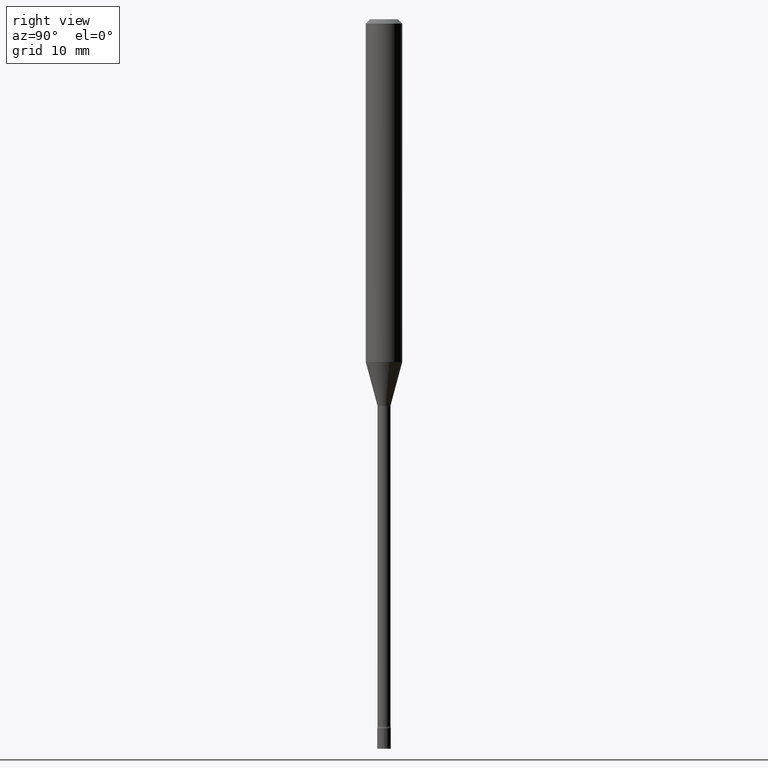
[diagram: clean part render]
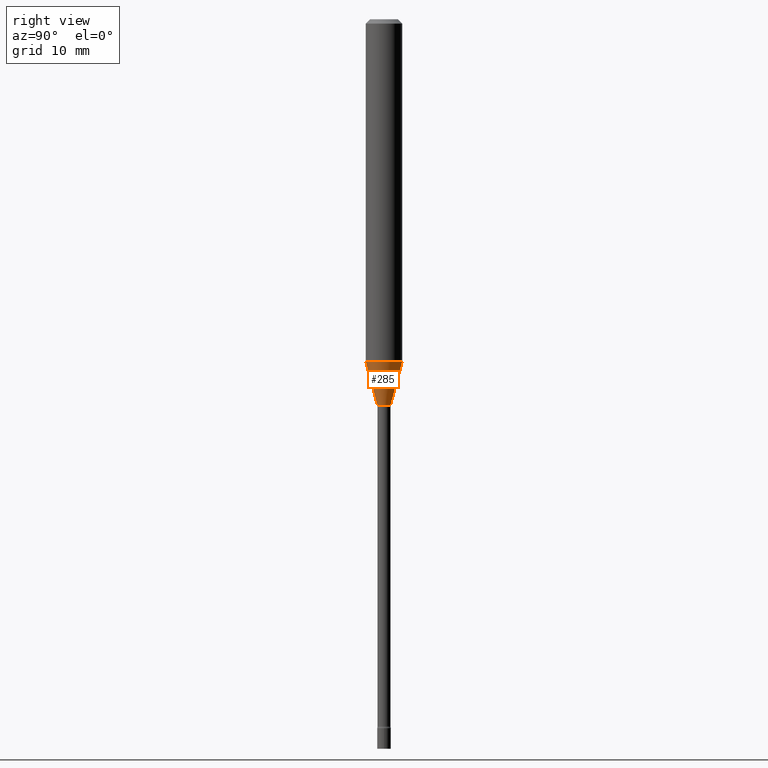
[diagram: same view with one face highlighted and labeled with its STEP entity id]
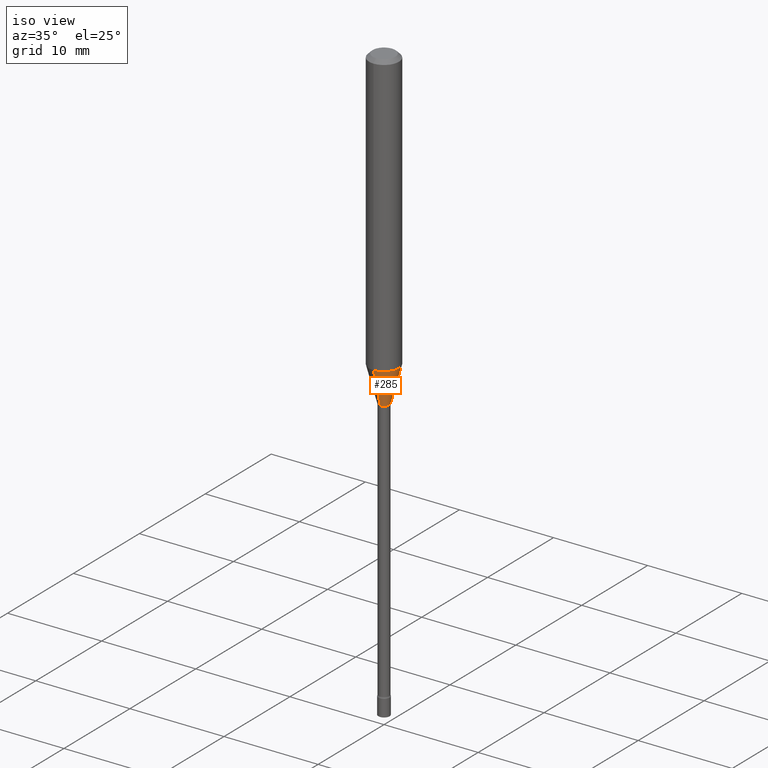
[diagram: same view with one face highlighted and labeled with its STEP entity id]
A machine part, right view. The second image highlights one B-rep face of the part: STEP entity #285.
A second angle (iso view) of the same face is appended — the face is thin or edge-on in the first view.
In plain terms, the highlighted conical surface has half-angle 15 deg.
Its self-contained STEP definition (entity closure, byte-faithful):
#3 = ORIENTED_EDGE ( 'NONE', *, *, #469, .F. ) ;
#20 = DIRECTION ( 'NONE',  ( 1.839019923739597554E-15, 0.2588190451025245697, 0.9659258262890670910 ) ) ;
#43 = CARTESIAN_POINT ( 'NONE',  ( 2.871546515168501925E-29, -4.099762927148765252E-15, -1.174225147374217793 ) ) ;
#52 = AXIS2_PLACEMENT_3D ( 'NONE', #43, #168, #317 ) ;
#64 = CARTESIAN_POINT ( 'NONE',  ( 1.606616180941141096E-16, 0.02261111260565936906, -1.323092501787273223 ) ) ;
#77 = CARTESIAN_POINT ( 'NONE',  ( 3.235598957532801493E-29, -4.619527694621298613E-15, -1.323092501787273223 ) ) ;
#81 = DIRECTION ( 'NONE',  ( -6.982962677686265922E-15, -1.000000000000000000, 0.000000000000000000 ) ) ;
#92 = ORIENTED_EDGE ( 'NONE', *, *, #138, .T. ) ;
#108 = AXIS2_PLACEMENT_3D ( 'NONE', #77, #471, #511 ) ;
#118 = CARTESIAN_POINT ( 'NONE',  ( 3.235598957532801493E-29, -4.619527694621298613E-15, -1.323092501787273223 ) ) ;
#128 = AXIS2_PLACEMENT_3D ( 'NONE', #118, #160, #81 ) ;
#134 = CARTESIAN_POINT ( 'NONE',  ( 3.023754139721028336E-16, 0.02261111260565936906, -1.323092501787273223 ) ) ;
#138 = EDGE_CURVE ( 'NONE', #493, #337, #257, .T. ) ;
#160 = DIRECTION ( 'NONE',  ( -2.445482045406543342E-29, 3.491462379524561524E-15, 1.000000000000000000 ) ) ;
#168 = DIRECTION ( 'NONE',  ( -2.445482045406543342E-29, 3.491462379524561524E-15, 1.000000000000000000 ) ) ;
#179 = ORIENTED_EDGE ( 'NONE', *, *, #418, .T. ) ;
#189 = CARTESIAN_POINT ( 'NONE',  ( -1.578925554262807327E-16, -0.02261111260566860820, -1.323092501787273223 ) ) ;
#197 = EDGE_CURVE ( 'NONE', #385, #266, #413, .T. ) ;
#215 = VECTOR ( 'NONE', #20, 39.37007874015748854 ) ;
#257 = LINE ( 'NONE', #64, #215 ) ;
#266 = VERTEX_POINT ( 'NONE', #293 ) ;
#274 = CIRCLE ( 'NONE', #52, 0.06250000000000000000 ) ;
#285 = ADVANCED_FACE ( 'NONE', ( #475 ), #477, .T. ) ;
#293 = CARTESIAN_POINT ( 'NONE',  ( -4.364351673553631225E-16, -0.06250000000000412170, -1.174225147374217570 ) ) ;
#297 = DIRECTION ( 'NONE',  ( -1.807323732225327773E-15, -0.2588190451025178529, 0.9659258262890690894 ) ) ;
#317 = DIRECTION ( 'NONE',  ( -6.982962677686265922E-15, -1.000000000000000000, 4.370956789862821150E-15 ) ) ;
#322 = CARTESIAN_POINT ( 'NONE',  ( -1.578925554262807327E-16, -0.02261111260566860820, -1.323092501787273223 ) ) ;
#326 = VECTOR ( 'NONE', #297, 39.37007874015748143 ) ;
#337 = VERTEX_POINT ( 'NONE', #509 ) ;
#346 = CIRCLE ( 'NONE', #108, 0.02261111260566398690 ) ;
#385 = VERTEX_POINT ( 'NONE', #189 ) ;
#413 = LINE ( 'NONE', #322, #326 ) ;
#418 = EDGE_CURVE ( 'NONE', #385, #493, #346, .T. ) ;
#422 = ORIENTED_EDGE ( 'NONE', *, *, #197, .F. ) ;
#437 = EDGE_LOOP ( 'NONE', ( #179, #92, #3, #422 ) ) ;
#469 = EDGE_CURVE ( 'NONE', #266, #337, #274, .T. ) ;
#471 = DIRECTION ( 'NONE',  ( -2.445482045406543342E-29, 3.491462379524561524E-15, 1.000000000000000000 ) ) ;
#475 = FACE_OUTER_BOUND ( 'NONE', #437, .T. ) ;
#477 = CONICAL_SURFACE ( 'NONE', #128, 0.02261111260566398690, 0.2617993877991499074 ) ;
#493 = VERTEX_POINT ( 'NONE', #134 ) ;
#509 = CARTESIAN_POINT ( 'NONE',  ( 4.440892098500910152E-16, 0.06249999999999588524, -1.174225147374218237 ) ) ;
#511 = DIRECTION ( 'NONE',  ( -6.982962677686265922E-15, -1.000000000000000000, 0.000000000000000000 ) ) ;